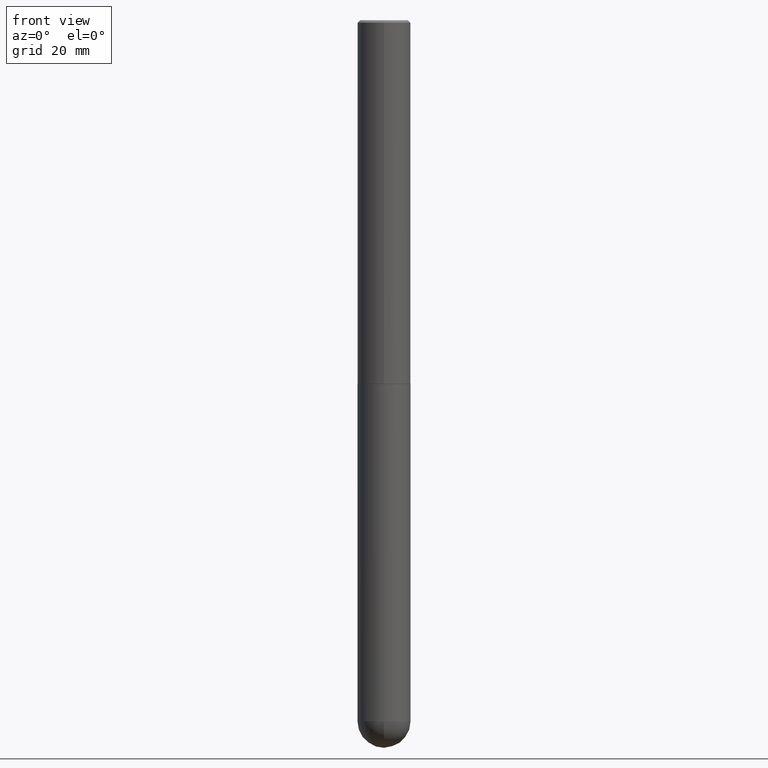
[diagram: clean part render]
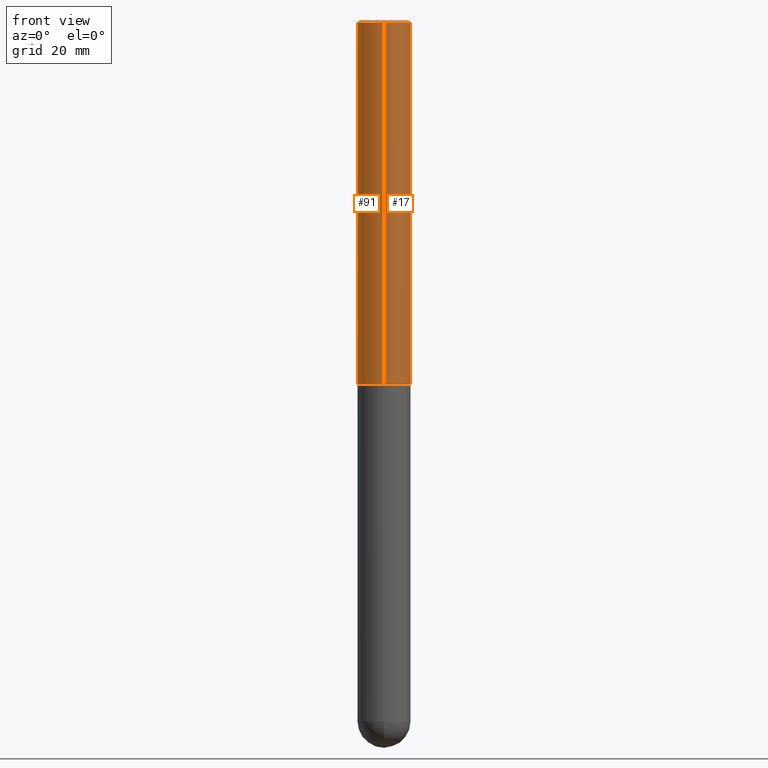
[diagram: same view with one multi-face feature highlighted, each face labeled with its STEP entity id]
A machine part, front view. The highlighted faces form ONE feature: a constant-radius fillet chain: 2 tangent blend faces with common blend radius 5.5563 mm. The faces share edges in the B-rep.
Their STEP definitions:
[1] entity #17 (Cylinder):
#3 = CIRCLE ( 'NONE', #195, 0.2187500000000000278 ) ;
#4 = LINE ( 'NONE', #160, #269 ) ;
#9 = CARTESIAN_POINT ( 'NONE',  ( 1.554312234475257811E-15, 0.2187499999999898692, -2.999000000000000554 ) ) ;
#17 = ADVANCED_FACE ( 'NONE', ( #310 ), #25, .T. ) ;
#23 = DIRECTION ( 'NONE',  ( -2.445024740490438590E-29, 3.492117266192602809E-15, 1.000000000000000000 ) ) ;
#25 = CYLINDRICAL_SURFACE ( 'NONE', #141, 0.2187500000000001943 ) ;
#30 = DIRECTION ( 'NONE',  ( -6.982962677686265922E-15, -1.000000000000000000, 3.492862791899307676E-15 ) ) ;
#59 = EDGE_LOOP ( 'NONE', ( #369, #79, #399, #199 ) ) ;
#73 = VERTEX_POINT ( 'NONE', #288 ) ;
#75 = CARTESIAN_POINT ( 'NONE',  ( 7.332629196730824746E-29, -1.047285968131161497E-14, -2.999000000000000110 ) ) ;
#79 = ORIENTED_EDGE ( 'NONE', *, *, #300, .T. ) ;
#95 = AXIS2_PLACEMENT_3D ( 'NONE', #75, #266, #96 ) ;
#96 = DIRECTION ( 'NONE',  ( -6.982962677686265922E-15, -1.000000000000000000, 2.497689594207322427E-15 ) ) ;
#122 = DIRECTION ( 'NONE',  ( -2.445024740490438870E-29, 3.492117266192602415E-15, 1.000000000000000000 ) ) ;
#125 = CARTESIAN_POINT ( 'NONE',  ( 4.890049480980889546E-31, -6.984234532385222726E-17, -0.02000000000000005246 ) ) ;
#141 = AXIS2_PLACEMENT_3D ( 'NONE', #248, #23, #185 ) ;
#144 = CARTESIAN_POINT ( 'NONE',  ( -1.500733937012521938E-15, -0.2187500000000000833, -0.01999999999999928571 ) ) ;
#160 = CARTESIAN_POINT ( 'NONE',  ( 1.554312234475220340E-15, 0.2187500000000001943, -7.639006519796324684E-16 ) ) ;
#161 = EDGE_CURVE ( 'NONE', #274, #396, #3, .T. ) ;
#163 = VECTOR ( 'NONE', #122, 39.37007874015748143 ) ;
#185 = DIRECTION ( 'NONE',  ( -6.982962677686265922E-15, -1.000000000000000000, 3.492117266192602415E-15 ) ) ;
#194 = CARTESIAN_POINT ( 'NONE',  ( 1.527523085743871237E-15, 0.2187499999999999445, -0.02000000000000081574 ) ) ;
#195 = AXIS2_PLACEMENT_3D ( 'NONE', #125, #312, #30 ) ;
#199 = ORIENTED_EDGE ( 'NONE', *, *, #348, .F. ) ;
#248 = CARTESIAN_POINT ( 'NONE',  ( 0.000000000000000000, 0.000000000000000000, 0.000000000000000000 ) ) ;
#258 = DIRECTION ( 'NONE',  ( -2.445024740490438870E-29, 3.492117266192602415E-15, 1.000000000000000000 ) ) ;
#266 = DIRECTION ( 'NONE',  ( -2.445024740490438590E-29, 3.492117266192602809E-15, 1.000000000000000000 ) ) ;
#269 = VECTOR ( 'NONE', #258, 39.37007874015748143 ) ;
#274 = VERTEX_POINT ( 'NONE', #144 ) ;
#283 = LINE ( 'NONE', #408, #163 ) ;
#284 = CIRCLE ( 'NONE', #95, 0.2187500000000003608 ) ;
#288 = CARTESIAN_POINT ( 'NONE',  ( -1.527523085743799845E-15, -0.2187500000000108524, -2.998999999999999222 ) ) ;
#300 = EDGE_CURVE ( 'NONE', #364, #396, #4, .T. ) ;
#310 = FACE_OUTER_BOUND ( 'NONE', #59, .T. ) ;
#312 = DIRECTION ( 'NONE',  ( -2.445024740490438590E-29, 3.492117266192602809E-15, 1.000000000000000000 ) ) ;
#348 = EDGE_CURVE ( 'NONE', #73, #274, #283, .T. ) ;
#364 = VERTEX_POINT ( 'NONE', #9 ) ;
#369 = ORIENTED_EDGE ( 'NONE', *, *, #403, .T. ) ;
#396 = VERTEX_POINT ( 'NONE', #194 ) ;
#399 = ORIENTED_EDGE ( 'NONE', *, *, #161, .F. ) ;
#403 = EDGE_CURVE ( 'NONE', #73, #364, #284, .T. ) ;
#408 = CARTESIAN_POINT ( 'NONE',  ( -1.527523085743872026E-15, -0.2187500000000001943, 7.639006519796324684E-16 ) ) ;
[2] entity #91 (Cylinder):
#1 = FACE_OUTER_BOUND ( 'NONE', #335, .T. ) ;
#4 = LINE ( 'NONE', #160, #269 ) ;
#8 = ORIENTED_EDGE ( 'NONE', *, *, #348, .T. ) ;
#9 = CARTESIAN_POINT ( 'NONE',  ( 1.554312234475257811E-15, 0.2187499999999898692, -2.999000000000000554 ) ) ;
#15 = DIRECTION ( 'NONE',  ( -6.982962677686265922E-15, -1.000000000000000000, 3.492862791899307676E-15 ) ) ;
#28 = DIRECTION ( 'NONE',  ( -2.445024740490438590E-29, 3.492117266192602809E-15, 1.000000000000000000 ) ) ;
#46 = ORIENTED_EDGE ( 'NONE', *, *, #300, .F. ) ;
#67 = AXIS2_PLACEMENT_3D ( 'NONE', #219, #341, #381 ) ;
#73 = VERTEX_POINT ( 'NONE', #288 ) ;
#85 = DIRECTION ( 'NONE',  ( -6.982962677686265922E-15, -1.000000000000000000, 3.492117266192602415E-15 ) ) ;
#91 = ADVANCED_FACE ( 'NONE', ( #1 ), #120, .T. ) ;
#105 = DIRECTION ( 'NONE',  ( -2.445024740490438590E-29, 3.492117266192602809E-15, 1.000000000000000000 ) ) ;
#120 = CYLINDRICAL_SURFACE ( 'NONE', #282, 0.2187500000000001943 ) ;
#122 = DIRECTION ( 'NONE',  ( -2.445024740490438870E-29, 3.492117266192602415E-15, 1.000000000000000000 ) ) ;
#127 = EDGE_CURVE ( 'NONE', #364, #73, #136, .T. ) ;
#136 = CIRCLE ( 'NONE', #67, 0.2187500000000003608 ) ;
#144 = CARTESIAN_POINT ( 'NONE',  ( -1.500733937012521938E-15, -0.2187500000000000833, -0.01999999999999928571 ) ) ;
#160 = CARTESIAN_POINT ( 'NONE',  ( 1.554312234475220340E-15, 0.2187500000000001943, -7.639006519796324684E-16 ) ) ;
#163 = VECTOR ( 'NONE', #122, 39.37007874015748143 ) ;
#193 = EDGE_CURVE ( 'NONE', #396, #274, #311, .T. ) ;
#194 = CARTESIAN_POINT ( 'NONE',  ( 1.527523085743871237E-15, 0.2187499999999999445, -0.02000000000000081574 ) ) ;
#207 = CARTESIAN_POINT ( 'NONE',  ( 4.890049480980889546E-31, -6.984234532385222726E-17, -0.02000000000000005246 ) ) ;
#219 = CARTESIAN_POINT ( 'NONE',  ( 7.332629196730824746E-29, -1.047285968131161497E-14, -2.999000000000000110 ) ) ;
#228 = AXIS2_PLACEMENT_3D ( 'NONE', #207, #105, #15 ) ;
#258 = DIRECTION ( 'NONE',  ( -2.445024740490438870E-29, 3.492117266192602415E-15, 1.000000000000000000 ) ) ;
#269 = VECTOR ( 'NONE', #258, 39.37007874015748143 ) ;
#274 = VERTEX_POINT ( 'NONE', #144 ) ;
#282 = AXIS2_PLACEMENT_3D ( 'NONE', #375, #28, #85 ) ;
#283 = LINE ( 'NONE', #408, #163 ) ;
#288 = CARTESIAN_POINT ( 'NONE',  ( -1.527523085743799845E-15, -0.2187500000000108524, -2.998999999999999222 ) ) ;
#300 = EDGE_CURVE ( 'NONE', #364, #396, #4, .T. ) ;
#311 = CIRCLE ( 'NONE', #228, 0.2187500000000000278 ) ;
#323 = ORIENTED_EDGE ( 'NONE', *, *, #193, .F. ) ;
#335 = EDGE_LOOP ( 'NONE', ( #46, #394, #8, #323 ) ) ;
#341 = DIRECTION ( 'NONE',  ( -2.445024740490438590E-29, 3.492117266192602809E-15, 1.000000000000000000 ) ) ;
#348 = EDGE_CURVE ( 'NONE', #73, #274, #283, .T. ) ;
#364 = VERTEX_POINT ( 'NONE', #9 ) ;
#375 = CARTESIAN_POINT ( 'NONE',  ( 0.000000000000000000, 0.000000000000000000, 0.000000000000000000 ) ) ;
#381 = DIRECTION ( 'NONE',  ( -6.982962677686265922E-15, -1.000000000000000000, 2.497689594207322427E-15 ) ) ;
#394 = ORIENTED_EDGE ( 'NONE', *, *, #127, .T. ) ;
#396 = VERTEX_POINT ( 'NONE', #194 ) ;
#408 = CARTESIAN_POINT ( 'NONE',  ( -1.527523085743872026E-15, -0.2187500000000001943, 7.639006519796324684E-16 ) ) ;